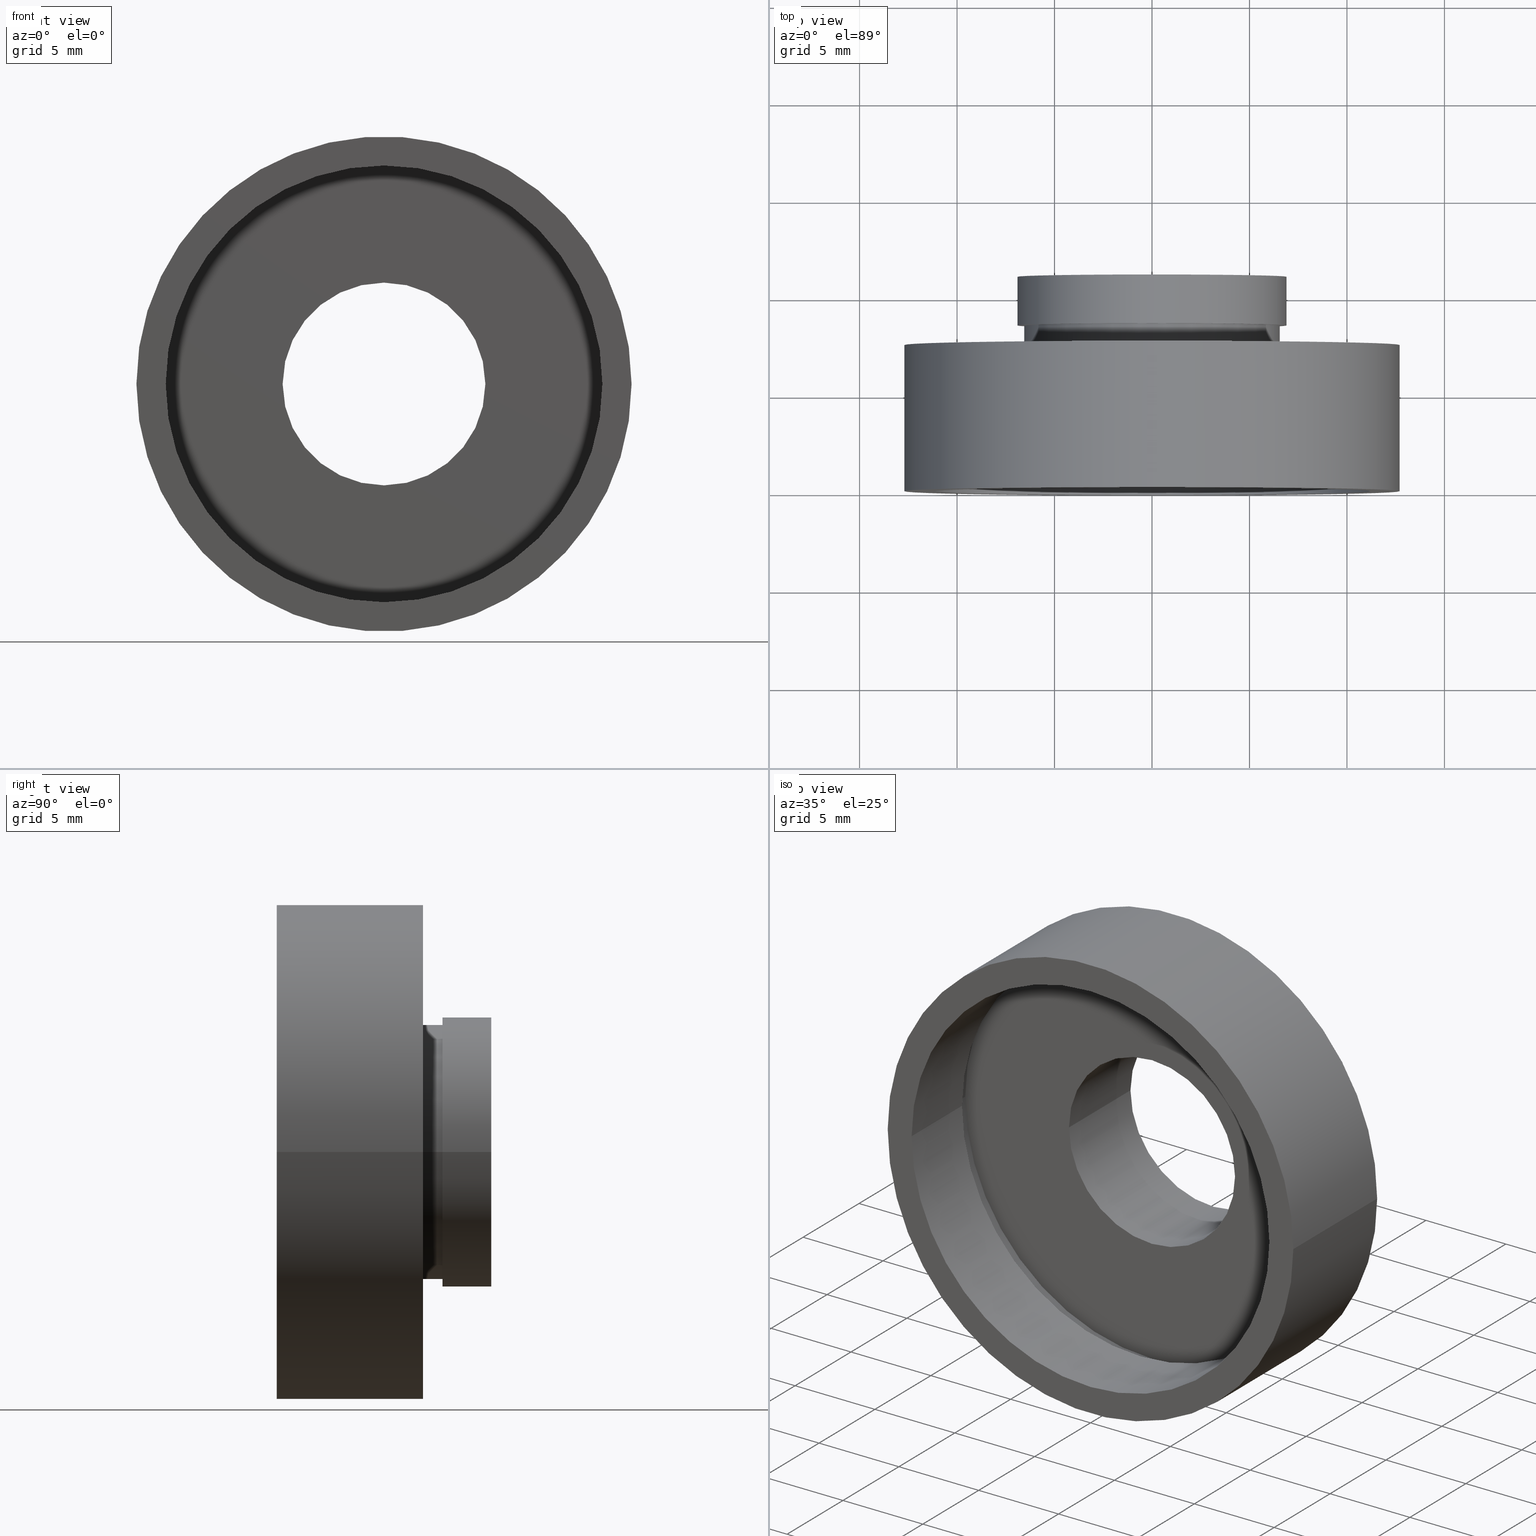
[diagram: canonical four-view strip — front | top / right | iso, engineering-drawing reading convention]
A machine part, canonical four-view strip (front | top / right | iso — engineering-drawing reading convention). The complete STEP part file that produces these views, byte-faithful:
ISO-10303-21;
HEADER;
FILE_DESCRIPTION (( 'STEP AP214' ),
    '1' );
FILE_NAME ('504132.STEP',
    '2019-10-10T02:15:28',
    ( '' ),
    ( '' ),
    'SwSTEP 2.0',
    'SolidWorks 2016',
    '' );
FILE_SCHEMA (( 'AUTOMOTIVE_DESIGN' ));
ENDSEC;

DATA;
#1 = PLANE ( 'NONE',  #461 ) ;
#2 = VERTEX_POINT ( 'NONE', #99 ) ;
#3 = ORIENTED_EDGE ( 'NONE', *, *, #297, .T. ) ;
#4 = DIRECTION ( 'NONE',  ( -1.224646799147351000E-016, 1.000000000000000000, -0.0000000000000000000 ) ) ;
#5 = EDGE_CURVE ( 'NONE', #372, #374, #180, .T. ) ;
#6 =( NAMED_UNIT ( * ) PLANE_ANGLE_UNIT ( ) SI_UNIT ( $, .RADIAN. ) );
#7 = DIRECTION ( 'NONE',  ( -1.224646799147351000E-016, 1.000000000000000000, -0.0000000000000000000 ) ) ;
#8 = AXIS2_PLACEMENT_3D ( 'NONE', #351, #47, #402 ) ;
#9 = DIRECTION ( 'NONE',  ( -1.000000000000000000, 0.0000000000000000000, 0.0000000000000000000 ) ) ;
#10 = EDGE_LOOP ( 'NONE', ( #474, #116, #589, #198 ) ) ;
#11 = EDGE_LOOP ( 'NONE', ( #110, #542, #592, #204 ) ) ;
#12 = DIRECTION ( 'NONE',  ( -1.000000000000000000, -1.482669637587014800E-016, 0.0000000000000000000 ) ) ;
#13 = APPLICATION_PROTOCOL_DEFINITION ( 'draft international standard', 'automotive_design', 1998, #404 ) ;
#14 = DIRECTION ( 'NONE',  ( -1.224646799147351000E-016, 1.000000000000000000, -0.0000000000000000000 ) ) ;
#15 = VECTOR ( 'NONE', #207, 1000.000000000000000 ) ;
#16 = FILL_AREA_STYLE ('',( #185 ) ) ;
#17 = ADVANCED_FACE ( 'NONE', ( #571 ), #482, .F. ) ;
#18 =( GEOMETRIC_REPRESENTATION_CONTEXT ( 3 ) GLOBAL_UNCERTAINTY_ASSIGNED_CONTEXT ( ( #357 ) ) GLOBAL_UNIT_ASSIGNED_CONTEXT ( ( #161, #304, #53 ) ) REPRESENTATION_CONTEXT ( 'NONE', 'WORKASPACE' ) );
#19 = FACE_OUTER_BOUND ( 'NONE', #597, .T. ) ;
#20 = CARTESIAN_POINT ( 'NONE',  ( -5.200000000000000200, 16.88601823708207700, 0.0000000000000000000 ) ) ;
#21 = ADVANCED_FACE ( 'NONE', ( #513 ), #406, .T. ) ;
#22 = DIRECTION ( 'NONE',  ( -1.224646799147351000E-016, 1.000000000000000000, -0.0000000000000000000 ) ) ;
#23 = EDGE_CURVE ( 'NONE', #360, #2, #422, .T. ) ;
#24 =( LENGTH_UNIT ( ) NAMED_UNIT ( * ) SI_UNIT ( .MILLI., .METRE. ) );
#25 = PRODUCT ( '504132', '504132', '', ( #63 ) ) ;
#26 = DIRECTION ( 'NONE',  ( -1.000000000000000000, 0.0000000000000000000, 0.0000000000000000000 ) ) ;
#27 = ORIENTED_EDGE ( 'NONE', *, *, #5, .F. ) ;
#28 = ORIENTED_EDGE ( 'NONE', *, *, #168, .F. ) ;
#29 = DIRECTION ( 'NONE',  ( -1.000000000000000000, -1.482669637587014800E-016, 0.0000000000000000000 ) ) ;
#30 = DIRECTION ( 'NONE',  ( 1.000000000000000000, 1.224646799147351000E-016, 0.0000000000000000000 ) ) ;
#31 = AXIS2_PLACEMENT_3D ( 'NONE', #206, #535, #303 ) ;
#32 = CIRCLE ( 'NONE', #8, 12.69999999999999900 ) ;
#33 = CARTESIAN_POINT ( 'NONE',  ( 0.0000000000000000000, 16.88601823708207700, 0.0000000000000000000 ) ) ;
#34 = UNCERTAINTY_MEASURE_WITH_UNIT (LENGTH_MEASURE( 1.000000000000000100E-005 ), #613, 'distance_accuracy_value', 'NONE');
#35 = ORIENTED_EDGE ( 'NONE', *, *, #509, .F. ) ;
#36 = CARTESIAN_POINT ( 'NONE',  ( 12.70000000000000500, -1.914145517036478500E-015, 1.555301434917138800E-015 ) ) ;
#37 = EDGE_LOOP ( 'NONE', ( #570, #171 ) ) ;
#38 = EDGE_CURVE ( 'NONE', #302, #102, #525, .T. ) ;
#39 =( GEOMETRIC_REPRESENTATION_CONTEXT ( 3 ) GLOBAL_UNCERTAINTY_ASSIGNED_CONTEXT ( ( #456 ) ) GLOBAL_UNIT_ASSIGNED_CONTEXT ( ( #536, #54, #254 ) ) REPRESENTATION_CONTEXT ( 'NONE', 'WORKASPACE' ) );
#40 = ORIENTED_EDGE ( 'NONE', *, *, #230, .F. ) ;
#41 = PRESENTATION_STYLE_ASSIGNMENT (( #617 ) ) ;
#42 = FILL_AREA_STYLE ('',( #100 ) ) ;
#43 = FILL_AREA_STYLE_COLOUR ( '', #466 ) ;
#44 = DIRECTION ( 'NONE',  ( 1.000000000000000000, 1.224646799147351000E-016, 0.0000000000000000000 ) ) ;
#45 = LINE ( 'NONE', #399, #544 ) ;
#46 = DIRECTION ( 'NONE',  ( -1.224646799147351000E-016, 1.000000000000000000, -0.0000000000000000000 ) ) ;
#47 = DIRECTION ( 'NONE',  ( -1.224646799147351000E-016, 1.000000000000000000, -0.0000000000000000000 ) ) ;
#48 = ORIENTED_EDGE ( 'NONE', *, *, #265, .F. ) ;
#49 = CARTESIAN_POINT ( 'NONE',  ( 1.516849758822328300E-015, 4.499999999999997300, 0.0000000000000000000 ) ) ;
#50 = ORIENTED_EDGE ( 'NONE', *, *, #230, .T. ) ;
#51 = DIRECTION ( 'NONE',  ( -1.224646799147351000E-016, 1.000000000000000000, -0.0000000000000000000 ) ) ;
#52 = AXIS2_PLACEMENT_3D ( 'NONE', #286, #411, #329 ) ;
#53 =( NAMED_UNIT ( * ) SI_UNIT ( $, .STERADIAN. ) SOLID_ANGLE_UNIT ( ) );
#54 =( NAMED_UNIT ( * ) PLANE_ANGLE_UNIT ( ) SI_UNIT ( $, .RADIAN. ) );
#55 = UNCERTAINTY_MEASURE_WITH_UNIT (LENGTH_MEASURE( 1.000000000000000100E-005 ), #533, 'distance_accuracy_value', 'NONE');
#56 = VECTOR ( 'NONE', #132, 1000.000000000000000 ) ;
#57 = DIRECTION ( 'NONE',  ( -1.224646799147351000E-016, 1.000000000000000000, -0.0000000000000000000 ) ) ;
#58 = AXIS2_PLACEMENT_3D ( 'NONE', #191, #242, #511 ) ;
#59 = LINE ( 'NONE', #586, #178 ) ;
#60 = FILL_AREA_STYLE_COLOUR ( '', #479 ) ;
#61 = VERTEX_POINT ( 'NONE', #264 ) ;
#62 = DIRECTION ( 'NONE',  ( -1.000000000000000000, -1.324216393875425300E-016, 0.0000000000000000000 ) ) ;
#63 = PRODUCT_CONTEXT ( 'NONE', #615, 'mechanical' ) ;
#64 = DIRECTION ( 'NONE',  ( -1.000000000000000000, 0.0000000000000000000, 0.0000000000000000000 ) ) ;
#65 = CIRCLE ( 'NONE', #283, 5.200000000000001100 ) ;
#66 = DIRECTION ( 'NONE',  ( -1.000000000000000000, 0.0000000000000000000, 0.0000000000000000000 ) ) ;
#67 = LINE ( 'NONE', #548, #434 ) ;
#68 = AXIS2_PLACEMENT_3D ( 'NONE', #49, #431, #208 ) ;
#69 = DIRECTION ( 'NONE',  ( 1.000000000000000000, 1.224646799147351000E-016, 0.0000000000000000000 ) ) ;
#70 = ORIENTED_EDGE ( 'NONE', *, *, #297, .F. ) ;
#71 = SURFACE_STYLE_FILL_AREA ( #214 ) ;
#72 = VERTEX_POINT ( 'NONE', #259 ) ;
#73 = ADVANCED_FACE ( 'NONE', ( #519, #133 ), #309, .F. ) ;
#74 = UNCERTAINTY_MEASURE_WITH_UNIT (LENGTH_MEASURE( 1.000000000000000100E-005 ), #24, 'distance_accuracy_value', 'NONE');
#75 = CARTESIAN_POINT ( 'NONE',  ( 1.394385078907592800E-015, 5.500000000000000000, 0.0000000000000000000 ) ) ;
#76 = ADVANCED_FACE ( 'NONE', ( #590 ), #546, .T. ) ;
#77 = DIRECTION ( 'NONE',  ( -1.224646799147351000E-016, 1.000000000000000000, -0.0000000000000000000 ) ) ;
#78 = STYLED_ITEM ( 'NONE', ( #197 ), #79 ) ;
#79 = ADVANCED_FACE ( 'NONE', ( #19 ), #371, .T. ) ;
#80 = VERTEX_POINT ( 'NONE', #105 ) ;
#81 = CARTESIAN_POINT ( 'NONE',  ( 5.200000000000001100, 5.500000000000000900, 6.368163355566236400E-016 ) ) ;
#82 = AXIS2_PLACEMENT_3D ( 'NONE', #33, #421, #248 ) ;
#83 = SURFACE_STYLE_USAGE ( .BOTH. , #193 ) ;
#84 = PRESENTATION_LAYER_ASSIGNMENT (  '', '', ( #147 ) ) ;
#85 = CYLINDRICAL_SURFACE ( 'NONE', #409, 11.19999999999999900 ) ;
#86 = ADVANCED_FACE ( 'NONE', ( #487 ), #386, .F. ) ;
#87 = DIRECTION ( 'NONE',  ( -1.224646799147351000E-016, 1.000000000000000000, -0.0000000000000000000 ) ) ;
#88 = FACE_OUTER_BOUND ( 'NONE', #618, .T. ) ;
#89 = SURFACE_STYLE_FILL_AREA ( #173 ) ;
#90 =( NAMED_UNIT ( * ) PLANE_ANGLE_UNIT ( ) SI_UNIT ( $, .RADIAN. ) );
#91 = EDGE_CURVE ( 'NONE', #72, #237, #501, .T. ) ;
#92 = ORIENTED_EDGE ( 'NONE', *, *, #240, .T. ) ;
#93 = AXIS2_PLACEMENT_3D ( 'NONE', #566, #530, #158 ) ;
#94 = CARTESIAN_POINT ( 'NONE',  ( 2.067940818438636500E-015, -3.469446951953614200E-015, 0.0000000000000000000 ) ) ;
#95 = VERTEX_POINT ( 'NONE', #107 ) ;
#96 = ORIENTED_EDGE ( 'NONE', *, *, #356, .T. ) ;
#97 = DIRECTION ( 'NONE',  ( -1.000000000000000000, 0.0000000000000000000, 0.0000000000000000000 ) ) ;
#98 = COLOUR_RGB ( '',1.000000000000000000, 1.000000000000000000, 1.000000000000000000 ) ;
#99 = CARTESIAN_POINT ( 'NONE',  ( 5.200000000000001100, 11.00000000000000000, 6.368163355566236400E-016 ) ) ;
#100 = FILL_AREA_STYLE_COLOUR ( '', #585 ) ;
#101 = DIRECTION ( 'NONE',  ( -1.224646799147351000E-016, 1.000000000000000000, 0.0000000000000000000 ) ) ;
#102 = VERTEX_POINT ( 'NONE', #445 ) ;
#103 = VERTEX_POINT ( 'NONE', #365 ) ;
#104 = AXIS2_PLACEMENT_3D ( 'NONE', #215, #306, #152 ) ;
#105 = CARTESIAN_POINT ( 'NONE',  ( -11.69999999999999800, 4.499999999999995600, 0.0000000000000000000 ) ) ;
#106 = CARTESIAN_POINT ( 'NONE',  ( 0.0000000000000000000, 16.88601823708207700, 0.0000000000000000000 ) ) ;
#107 = CARTESIAN_POINT ( 'NONE',  ( -12.69999999999999900, -5.024748386870749500E-015, 0.0000000000000000000 ) ) ;
#108 = DIRECTION ( 'NONE',  ( -1.000000000000000000, -1.224646799147351000E-016, 0.0000000000000000000 ) ) ;
#109 = CARTESIAN_POINT ( 'NONE',  ( 11.70000000000000100, 4.499999999999999100, 1.432836755002403100E-015 ) ) ;
#110 = ORIENTED_EDGE ( 'NONE', *, *, #203, .F. ) ;
#111 = ORIENTED_EDGE ( 'NONE', *, *, #23, .T. ) ;
#112 = MECHANICAL_DESIGN_GEOMETRIC_PRESENTATION_REPRESENTATION (  '', ( #78 ), #18 ) ;
#113 = CARTESIAN_POINT ( 'NONE',  ( 6.549999999999998900, 16.88601823708207700, 8.021436534415162300E-016 ) ) ;
#114 = AXIS2_PLACEMENT_3D ( 'NONE', #94, #249, #429 ) ;
#115 = EDGE_CURVE ( 'NONE', #457, #95, #551, .T. ) ;
#116 = ORIENTED_EDGE ( 'NONE', *, *, #509, .T. ) ;
#117 = SURFACE_STYLE_FILL_AREA ( #527 ) ;
#118 = CARTESIAN_POINT ( 'NONE',  ( -6.900000000000001200, 16.88601823708207700, 0.0000000000000000000 ) ) ;
#119 = ORIENTED_EDGE ( 'NONE', *, *, #381, .T. ) ;
#120 = EDGE_CURVE ( 'NONE', #61, #360, #493, .T. ) ;
#121 = CYLINDRICAL_SURFACE ( 'NONE', #82, 11.69999999999999900 ) ;
#122 = PRESENTATION_LAYER_ASSIGNMENT (  '', '', ( #192 ) ) ;
#123 = SURFACE_STYLE_USAGE ( .BOTH. , #506 ) ;
#124 = VERTEX_POINT ( 'NONE', #322 ) ;
#125 = EDGE_LOOP ( 'NONE', ( #350, #526 ) ) ;
#126 = AXIS2_PLACEMENT_3D ( 'NONE', #555, #295, #30 ) ;
#127 = EDGE_CURVE ( 'NONE', #231, #80, #603, .T. ) ;
#128 = CARTESIAN_POINT ( 'NONE',  ( 12.70000000000000100, 7.499999999999998200, 1.555301434917138400E-015 ) ) ;
#129 = CARTESIAN_POINT ( 'NONE',  ( -6.549999999999998000, 8.500000000000000000, 0.0000000000000000000 ) ) ;
#130 = VECTOR ( 'NONE', #315, 1000.000000000000000 ) ;
#131 = ORIENTED_EDGE ( 'NONE', *, *, #609, .T. ) ;
#132 = DIRECTION ( 'NONE',  ( -1.224646799147351000E-016, 1.000000000000000000, -0.0000000000000000000 ) ) ;
#133 = FACE_BOUND ( 'NONE', #504, .T. ) ;
#134 = AXIS2_PLACEMENT_3D ( 'NONE', #581, #333, #395 ) ;
#135 = FILL_AREA_STYLE_COLOUR ( '', #470 ) ;
#136 = EDGE_CURVE ( 'NONE', #427, #163, #218, .T. ) ;
#137 = FACE_BOUND ( 'NONE', #430, .T. ) ;
#138 = DIRECTION ( 'NONE',  ( -1.000000000000000000, 0.0000000000000000000, 0.0000000000000000000 ) ) ;
#139 = VECTOR ( 'NONE', #534, 1000.000000000000000 ) ;
#140 = PRODUCT_DEFINITION_SHAPE ( 'NONE', 'NONE',  #175 ) ;
#141 = FACE_OUTER_BOUND ( 'NONE', #612, .T. ) ;
#142 = AXIS2_PLACEMENT_3D ( 'NONE', #500, #284, #234 ) ;
#143 = DIRECTION ( 'NONE',  ( -1.000000000000000000, 0.0000000000000000000, 0.0000000000000000000 ) ) ;
#144 = VERTEX_POINT ( 'NONE', #166 ) ;
#145 = ORIENTED_EDGE ( 'NONE', *, *, #381, .F. ) ;
#146 = CARTESIAN_POINT ( 'NONE',  ( -11.19999999999999800, -1.371604415045033100E-015, 0.0000000000000000000 ) ) ;
#147 = STYLED_ITEM ( 'NONE', ( #41 ), #76 ) ;
#148 = CARTESIAN_POINT ( 'NONE',  ( 0.0000000000000000000, 16.88601823708207700, 0.0000000000000000000 ) ) ;
#149 = MECHANICAL_DESIGN_GEOMETRIC_PRESENTATION_REPRESENTATION (  '', ( #313 ), #494 ) ;
#150 = STYLED_ITEM ( 'NONE', ( #364 ), #184 ) ;
#151 = ORIENTED_EDGE ( 'NONE', *, *, #203, .T. ) ;
#152 = DIRECTION ( 'NONE',  ( -1.000000000000000000, -1.224646799147351000E-016, 0.0000000000000000000 ) ) ;
#153 = ORIENTED_EDGE ( 'NONE', *, *, #557, .F. ) ;
#154 =( LENGTH_UNIT ( ) NAMED_UNIT ( * ) SI_UNIT ( .MILLI., .METRE. ) );
#155 = DIRECTION ( 'NONE',  ( -1.224646799147351000E-016, 1.000000000000000000, -0.0000000000000000000 ) ) ;
#156 = CARTESIAN_POINT ( 'NONE',  ( 1.026991039163387500E-015, 8.500000000000000000, 0.0000000000000000000 ) ) ;
#157 = CIRCLE ( 'NONE', #134, 11.19999999999999900 ) ;
#158 = DIRECTION ( 'NONE',  ( -1.000000000000000000, -1.365923996832131600E-016, 0.0000000000000000000 ) ) ;
#159 = CARTESIAN_POINT ( 'NONE',  ( 6.550000000000000700, 7.499999999999999100, 0.0000000000000000000 ) ) ;
#160 = CIRCLE ( 'NONE', #233, 5.200000000000000200 ) ;
#161 =( LENGTH_UNIT ( ) NAMED_UNIT ( * ) SI_UNIT ( .MILLI., .METRE. ) );
#162 = CARTESIAN_POINT ( 'NONE',  ( 7.208293393765501500E-016, 10.99999999999999600, 0.0000000000000000000 ) ) ;
#163 = VERTEX_POINT ( 'NONE', #319 ) ;
#164 = AXIS2_PLACEMENT_3D ( 'NONE', #280, #77, #66 ) ;
#165 = PLANE ( 'NONE',  #564 ) ;
#166 = CARTESIAN_POINT ( 'NONE',  ( -6.549999999999998900, 7.499999999999999100, 0.0000000000000000000 ) ) ;
#167 = AXIS2_PLACEMENT_3D ( 'NONE', #199, #472, #143 ) ;
#168 = EDGE_CURVE ( 'NONE', #312, #103, #288, .T. ) ;
#169 = FACE_BOUND ( 'NONE', #252, .T. ) ;
#170 = DIRECTION ( 'NONE',  ( -1.000000000000000000, -1.224646799147350700E-016, 0.0000000000000000000 ) ) ;
#171 = ORIENTED_EDGE ( 'NONE', *, *, #177, .F. ) ;
#172 = ORIENTED_EDGE ( 'NONE', *, *, #327, .T. ) ;
#173 = FILL_AREA_STYLE ('',( #60 ) ) ;
#174 = CARTESIAN_POINT ( 'NONE',  ( 1.394385078907593200E-015, 5.499999999999996400, 0.0000000000000000000 ) ) ;
#175 = PRODUCT_DEFINITION ( 'δ֪', '', #245, #593 ) ;
#176 = FACE_BOUND ( 'NONE', #394, .T. ) ;
#177 = EDGE_CURVE ( 'NONE', #72, #144, #471, .T. ) ;
#178 = VECTOR ( 'NONE', #57, 1000.000000000000000 ) ;
#179 = ORIENTED_EDGE ( 'NONE', *, *, #463, .T. ) ;
#180 = CIRCLE ( 'NONE', #93, 12.69999999999999900 ) ;
#181 = STYLED_ITEM ( 'NONE', ( #217 ), #370 ) ;
#182 = DIRECTION ( 'NONE',  ( -1.224646799147351000E-016, 1.000000000000000000, -0.0000000000000000000 ) ) ;
#183 = ORIENTED_EDGE ( 'NONE', *, *, #136, .T. ) ;
#184 = ADVANCED_FACE ( 'NONE', ( #510 ), #348, .F. ) ;
#185 = FILL_AREA_STYLE_COLOUR ( '', #339 ) ;
#186 = AXIS2_PLACEMENT_3D ( 'NONE', #447, #4, #62 ) ;
#187 = CIRCLE ( 'NONE', #52, 11.69999999999999900 ) ;
#188 = EDGE_LOOP ( 'NONE', ( #572, #111, #359, #387 ) ) ;
#189 = SURFACE_STYLE_FILL_AREA ( #389 ) ;
#190 = AXIS2_PLACEMENT_3D ( 'NONE', #156, #435, #349 ) ;
#191 = CARTESIAN_POINT ( 'NONE',  ( 2.067940818438636100E-015, 0.0000000000000000000, 0.0000000000000000000 ) ) ;
#192 = STYLED_ITEM ( 'NONE', ( #563 ), #17 ) ;
#193 = SURFACE_SIDE_STYLE ('',( #377 ) ) ;
#194 =( NAMED_UNIT ( * ) SI_UNIT ( $, .STERADIAN. ) SOLID_ANGLE_UNIT ( ) );
#195 = CIRCLE ( 'NONE', #587, 11.69999999999999900 ) ;
#196 = DIRECTION ( 'NONE',  ( -1.000000000000000000, 0.0000000000000000000, 0.0000000000000000000 ) ) ;
#197 = PRESENTATION_STYLE_ASSIGNMENT (( #484 ) ) ;
#198 = ORIENTED_EDGE ( 'NONE', *, *, #609, .F. ) ;
#199 = CARTESIAN_POINT ( 'NONE',  ( 0.0000000000000000000, 16.88601823708207700, 0.0000000000000000000 ) ) ;
#200 = PRESENTATION_LAYER_ASSIGNMENT (  '', '', ( #78 ) ) ;
#201 = AXIS2_PLACEMENT_3D ( 'NONE', #260, #51, #263 ) ;
#202 = CIRCLE ( 'NONE', #164, 6.900000000000000400 ) ;
#203 = EDGE_CURVE ( 'NONE', #103, #451, #227, .T. ) ;
#204 = ORIENTED_EDGE ( 'NONE', *, *, #620, .F. ) ;
#205 = CARTESIAN_POINT ( 'NONE',  ( 0.0000000000000000000, 16.88601823708207700, 0.0000000000000000000 ) ) ;
#206 = CARTESIAN_POINT ( 'NONE',  ( 0.0000000000000000000, 16.88601823708207700, 0.0000000000000000000 ) ) ;
#207 = DIRECTION ( 'NONE',  ( -1.224646799147351000E-016, 1.000000000000000000, -0.0000000000000000000 ) ) ;
#208 = DIRECTION ( 'NONE',  ( -1.000000000000000000, -1.548860246407863600E-016, 0.0000000000000000000 ) ) ;
#209 = SURFACE_STYLE_FILL_AREA ( #16 ) ;
#210 = PRESENTATION_LAYER_ASSIGNMENT (  '', '', ( #181 ) ) ;
#211 = MECHANICAL_DESIGN_GEOMETRIC_PRESENTATION_REPRESENTATION (  '', ( #192 ), #529 ) ;
#212 = ORIENTED_EDGE ( 'NONE', *, *, #294, .T. ) ;
#213 = VECTOR ( 'NONE', #397, 1000.000000000000000 ) ;
#214 = FILL_AREA_STYLE ('',( #576 ) ) ;
#215 = CARTESIAN_POINT ( 'NONE',  ( 12.70000000000000300, -1.061774417353046300E-015, 0.0000000000000000000 ) ) ;
#216 = MECHANICAL_DESIGN_GEOMETRIC_PRESENTATION_REPRESENTATION (  '', ( #290 ), #320 ) ;
#217 = PRESENTATION_STYLE_ASSIGNMENT (( #554 ) ) ;
#218 = CIRCLE ( 'NONE', #222, 11.69999999999999900 ) ;
#219 = DIRECTION ( 'NONE',  ( -1.224646799147351000E-016, 1.000000000000000000, -0.0000000000000000000 ) ) ;
#220 = UNCERTAINTY_MEASURE_WITH_UNIT (LENGTH_MEASURE( 1.000000000000000100E-005 ), #338, 'distance_accuracy_value', 'NONE');
#221 = ORIENTED_EDGE ( 'NONE', *, *, #277, .T. ) ;
#222 = AXIS2_PLACEMENT_3D ( 'NONE', #272, #219, #12 ) ;
#223 = CARTESIAN_POINT ( 'NONE',  ( 2.067940818438636500E-015, -3.469446951953614200E-015, 0.0000000000000000000 ) ) ;
#224 = AXIS2_PLACEMENT_3D ( 'NONE', #380, #87, #138 ) ;
#225 = PRESENTATION_LAYER_ASSIGNMENT (  '', '', ( #425 ) ) ;
#226 = DIRECTION ( 'NONE',  ( -1.000000000000000000, -1.482669637587014800E-016, 0.0000000000000000000 ) ) ;
#227 = LINE ( 'NONE', #579, #130 ) ;
#228 = PRESENTATION_STYLE_ASSIGNMENT (( #432 ) ) ;
#229 = ORIENTED_EDGE ( 'NONE', *, *, #120, .T. ) ;
#230 = EDGE_CURVE ( 'NONE', #231, #163, #59, .T. ) ;
#231 = VERTEX_POINT ( 'NONE', #109 ) ;
#232 = ADVANCED_FACE ( 'NONE', ( #169, #325 ), #314, .F. ) ;
#233 = AXIS2_PLACEMENT_3D ( 'NONE', #75, #182, #498 ) ;
#234 = DIRECTION ( 'NONE',  ( -1.000000000000000000, -1.324216393875425300E-016, 0.0000000000000000000 ) ) ;
#235 = PRESENTATION_STYLE_ASSIGNMENT (( #123 ) ) ;
#236 = PRESENTATION_LAYER_ASSIGNMENT (  '', '', ( #313 ) ) ;
#237 = VERTEX_POINT ( 'NONE', #403 ) ;
#238 = CARTESIAN_POINT ( 'NONE',  ( -5.200000000000000200, 11.00000000000000000, 0.0000000000000000000 ) ) ;
#239 = ORIENTED_EDGE ( 'NONE', *, *, #606, .F. ) ;
#240 = EDGE_CURVE ( 'NONE', #80, #427, #67, .T. ) ;
#241 = FILL_AREA_STYLE ('',( #508 ) ) ;
#242 = DIRECTION ( 'NONE',  ( -1.224646799147351000E-016, 1.000000000000000000, -0.0000000000000000000 ) ) ;
#243 = EDGE_LOOP ( 'NONE', ( #436, #70 ) ) ;
#244 = ORIENTED_EDGE ( 'NONE', *, *, #505, .T. ) ;
#245 = PRODUCT_DEFINITION_FORMATION_WITH_SPECIFIED_SOURCE ( '�κ�', '', #25, .NOT_KNOWN. ) ;
#246 = FILL_AREA_STYLE ('',( #135 ) ) ;
#247 = AXIS2_PLACEMENT_3D ( 'NONE', #223, #584, #170 ) ;
#248 = DIRECTION ( 'NONE',  ( -1.000000000000000000, 0.0000000000000000000, 0.0000000000000000000 ) ) ;
#249 = DIRECTION ( 'NONE',  ( -1.224646799147351000E-016, 1.000000000000000000, -0.0000000000000000000 ) ) ;
#250 = MANIFOLD_SOLID_BREP ( '��ת1', #408 ) ;
#251 = ORIENTED_EDGE ( 'NONE', *, *, #261, .T. ) ;
#252 = EDGE_LOOP ( 'NONE', ( #268, #239 ) ) ;
#253 = SURFACE_STYLE_USAGE ( .BOTH. , #256 ) ;
#254 =( NAMED_UNIT ( * ) SI_UNIT ( $, .STERADIAN. ) SOLID_ANGLE_UNIT ( ) );
#255 = AXIS2_PLACEMENT_3D ( 'NONE', #162, #441, #486 ) ;
#256 = SURFACE_SIDE_STYLE ('',( #189 ) ) ;
#257 = CARTESIAN_POINT ( 'NONE',  ( 0.0000000000000000000, 0.0000000000000000000, 0.0000000000000000000 ) ) ;
#258 = VERTEX_POINT ( 'NONE', #238 ) ;
#259 = CARTESIAN_POINT ( 'NONE',  ( 6.550000000000000700, 7.500000000000000900, 8.021436534415164200E-016 ) ) ;
#260 = CARTESIAN_POINT ( 'NONE',  ( 2.067940818438636100E-015, 0.0000000000000000000, 0.0000000000000000000 ) ) ;
#261 = EDGE_CURVE ( 'NONE', #80, #231, #187, .T. ) ;
#262 = DIRECTION ( 'NONE',  ( -1.224646799147351000E-016, 1.000000000000000000, -0.0000000000000000000 ) ) ;
#263 = DIRECTION ( 'NONE',  ( -1.000000000000000000, -1.224646799147351000E-016, 0.0000000000000000000 ) ) ;
#264 = CARTESIAN_POINT ( 'NONE',  ( -5.199999999999998400, 5.499999999999999100, 0.0000000000000000000 ) ) ;
#265 = EDGE_CURVE ( 'NONE', #103, #312, #202, .T. ) ;
#266 = CARTESIAN_POINT ( 'NONE',  ( 1.394385078907592800E-015, 5.500000000000000000, 0.0000000000000000000 ) ) ;
#267 = VERTEX_POINT ( 'NONE', #594 ) ;
#268 = ORIENTED_EDGE ( 'NONE', *, *, #410, .F. ) ;
#269 = EDGE_CURVE ( 'NONE', #61, #258, #301, .T. ) ;
#270 = CIRCLE ( 'NONE', #332, 6.549999999999998900 ) ;
#271 =( NAMED_UNIT ( * ) SI_UNIT ( $, .STERADIAN. ) SOLID_ANGLE_UNIT ( ) );
#272 = CARTESIAN_POINT ( 'NONE',  ( 1.394385078907593200E-015, 5.499999999999996400, 0.0000000000000000000 ) ) ;
#273 = ORIENTED_EDGE ( 'NONE', *, *, #38, .F. ) ;
#274 = ORIENTED_EDGE ( 'NONE', *, *, #240, .F. ) ;
#275 = PLANE ( 'NONE',  #600 ) ;
#276 = PRODUCT_RELATED_PRODUCT_CATEGORY ( 'part', '', ( #25 ) ) ;
#277 = EDGE_CURVE ( 'NONE', #360, #61, #160, .T. ) ;
#278 = ADVANCED_BREP_SHAPE_REPRESENTATION ( '504132', ( #250, #428 ), #39 ) ;
#279 = FACE_OUTER_BOUND ( 'NONE', #562, .T. ) ;
#280 = CARTESIAN_POINT ( 'NONE',  ( 1.026991039163387500E-015, 8.500000000000000000, 0.0000000000000000000 ) ) ;
#281 = FACE_BOUND ( 'NONE', #514, .T. ) ;
#282 = ADVANCED_FACE ( 'NONE', ( #517 ), #298, .T. ) ;
#283 = AXIS2_PLACEMENT_3D ( 'NONE', #574, #355, #623 ) ;
#284 = DIRECTION ( 'NONE',  ( -1.224646799147351000E-016, 1.000000000000000000, -0.0000000000000000000 ) ) ;
#285 = ORIENTED_EDGE ( 'NONE', *, *, #38, .T. ) ;
#286 = CARTESIAN_POINT ( 'NONE',  ( 1.516849758822328300E-015, 4.499999999999997300, 0.0000000000000000000 ) ) ;
#287 = ADVANCED_FACE ( 'NONE', ( #398, #281 ), #275, .F. ) ;
#288 = CIRCLE ( 'NONE', #415, 6.900000000000000400 ) ;
#289 = ADVANCED_FACE ( 'NONE', ( #141 ), #413, .T. ) ;
#290 = STYLED_ITEM ( 'NONE', ( #353 ), #378 ) ;
#291 = ORIENTED_EDGE ( 'NONE', *, *, #477, .F. ) ;
#292 =( NAMED_UNIT ( * ) SI_UNIT ( $, .STERADIAN. ) SOLID_ANGLE_UNIT ( ) );
#293 = COLOUR_RGB ( '',1.000000000000000000, 1.000000000000000000, 1.000000000000000000 ) ;
#294 = EDGE_CURVE ( 'NONE', #144, #72, #419, .T. ) ;
#295 = DIRECTION ( 'NONE',  ( 1.224646799147351000E-016, -1.000000000000000000, 0.0000000000000000000 ) ) ;
#296 = DIRECTION ( 'NONE',  ( -1.224646799147351000E-016, 1.000000000000000000, -0.0000000000000000000 ) ) ;
#297 = EDGE_CURVE ( 'NONE', #163, #427, #195, .T. ) ;
#298 = CYLINDRICAL_SURFACE ( 'NONE', #599, 6.549999999999998900 ) ;
#299 = CARTESIAN_POINT ( 'NONE',  ( 1.026991039163387500E-015, 8.500000000000000000, 0.0000000000000000000 ) ) ;
#300 = AXIS2_PLACEMENT_3D ( 'NONE', #266, #7, #439 ) ;
#301 = LINE ( 'NONE', #20, #614 ) ;
#302 = VERTEX_POINT ( 'NONE', #550 ) ;
#303 = DIRECTION ( 'NONE',  ( -1.000000000000000000, 0.0000000000000000000, 0.0000000000000000000 ) ) ;
#304 =( NAMED_UNIT ( * ) PLANE_ANGLE_UNIT ( ) SI_UNIT ( $, .RADIAN. ) );
#305 = CIRCLE ( 'NONE', #190, 6.549999999999998900 ) ;
#306 = DIRECTION ( 'NONE',  ( -1.224646799147351000E-016, 1.000000000000000000, 0.0000000000000000000 ) ) ;
#307 = DIRECTION ( 'NONE',  ( 1.224646799147351000E-016, -1.000000000000000000, 0.0000000000000000000 ) ) ;
#308 = PRESENTATION_LAYER_ASSIGNMENT (  '', '', ( #150 ) ) ;
#309 = PLANE ( 'NONE',  #104 ) ;
#310 = CARTESIAN_POINT ( 'NONE',  ( 6.900000000000001200, 8.500000000000000000, 0.0000000000000000000 ) ) ;
#311 = ORIENTED_EDGE ( 'NONE', *, *, #120, .F. ) ;
#312 = VERTEX_POINT ( 'NONE', #416 ) ;
#313 = STYLED_ITEM ( 'NONE', ( #228 ), #278 ) ;
#314 = PLANE ( 'NONE',  #473 ) ;
#315 = DIRECTION ( 'NONE',  ( -1.224646799147351000E-016, 1.000000000000000000, -0.0000000000000000000 ) ) ;
#316 = EDGE_LOOP ( 'NONE', ( #251, #444 ) ) ;
#317 = COLOUR_RGB ( '',1.000000000000000000, 1.000000000000000000, 1.000000000000000000 ) ;
#318 = DIRECTION ( 'NONE',  ( 1.000000000000000000, 0.0000000000000000000, 0.0000000000000000000 ) ) ;
#319 = CARTESIAN_POINT ( 'NONE',  ( 11.70000000000000100, 5.499999999999998200, 1.432836755002403100E-015 ) ) ;
#320 =( GEOMETRIC_REPRESENTATION_CONTEXT ( 3 ) GLOBAL_UNCERTAINTY_ASSIGNED_CONTEXT ( ( #324 ) ) GLOBAL_UNIT_ASSIGNED_CONTEXT ( ( #465, #601, #194 ) ) REPRESENTATION_CONTEXT ( 'NONE', 'WORKASPACE' ) );
#321 = EDGE_CURVE ( 'NONE', #312, #267, #531, .T. ) ;
#322 = CARTESIAN_POINT ( 'NONE',  ( 11.20000000000000100, 1.371604415045033100E-015, 1.371604415045035500E-015 ) ) ;
#323 = CYLINDRICAL_SURFACE ( 'NONE', #167, 12.69999999999999900 ) ;
#324 = UNCERTAINTY_MEASURE_WITH_UNIT (LENGTH_MEASURE( 1.000000000000000100E-005 ), #465, 'distance_accuracy_value', 'NONE');
#325 = FACE_OUTER_BOUND ( 'NONE', #488, .T. ) ;
#326 = DIRECTION ( 'NONE',  ( -1.224646799147351000E-016, 1.000000000000000000, 0.0000000000000000000 ) ) ;
#327 = EDGE_CURVE ( 'NONE', #475, #124, #454, .T. ) ;
#328 = DIRECTION ( 'NONE',  ( -1.000000000000000000, 0.0000000000000000000, 0.0000000000000000000 ) ) ;
#329 = DIRECTION ( 'NONE',  ( -1.000000000000000000, -1.482669637587014800E-016, 0.0000000000000000000 ) ) ;
#330 = CYLINDRICAL_SURFACE ( 'NONE', #224, 5.200000000000000200 ) ;
#331 = MECHANICAL_DESIGN_GEOMETRIC_PRESENTATION_REPRESENTATION (  '', ( #147 ), #346 ) ;
#332 = AXIS2_PLACEMENT_3D ( 'NONE', #299, #336, #605 ) ;
#333 = DIRECTION ( 'NONE',  ( -1.224646799147351000E-016, 1.000000000000000000, -0.0000000000000000000 ) ) ;
#334 = ORIENTED_EDGE ( 'NONE', *, *, #557, .T. ) ;
#335 = CARTESIAN_POINT ( 'NONE',  ( 0.0000000000000000000, 16.88601823708207700, 0.0000000000000000000 ) ) ;
#336 = DIRECTION ( 'NONE',  ( -1.224646799147351000E-016, 1.000000000000000000, -0.0000000000000000000 ) ) ;
#337 = LINE ( 'NONE', #528, #15 ) ;
#338 =( LENGTH_UNIT ( ) NAMED_UNIT ( * ) SI_UNIT ( .MILLI., .METRE. ) );
#339 = COLOUR_RGB ( '',1.000000000000000000, 1.000000000000000000, 1.000000000000000000 ) ;
#340 = EDGE_LOOP ( 'NONE', ( #481, #311, #383, #405 ) ) ;
#341 = ORIENTED_EDGE ( 'NONE', *, *, #168, .T. ) ;
#342 = CARTESIAN_POINT ( 'NONE',  ( 7.208293393765498600E-016, 11.00000000000000000, 0.0000000000000000000 ) ) ;
#343 = ORIENTED_EDGE ( 'NONE', *, *, #115, .T. ) ;
#344 = UNCERTAINTY_MEASURE_WITH_UNIT (LENGTH_MEASURE( 1.000000000000000100E-005 ), #154, 'distance_accuracy_value', 'NONE');
#345 = APPLICATION_PROTOCOL_DEFINITION ( 'draft international standard', 'automotive_design', 1998, #615 ) ;
#346 =( GEOMETRIC_REPRESENTATION_CONTEXT ( 3 ) GLOBAL_UNCERTAINTY_ASSIGNED_CONTEXT ( ( #55 ) ) GLOBAL_UNIT_ASSIGNED_CONTEXT ( ( #533, #569, #622 ) ) REPRESENTATION_CONTEXT ( 'NONE', 'WORKASPACE' ) );
#347 = SURFACE_SIDE_STYLE ('',( #71 ) ) ;
#348 = CYLINDRICAL_SURFACE ( 'NONE', #368, 5.200000000000000200 ) ;
#349 = DIRECTION ( 'NONE',  ( -1.000000000000000000, 0.0000000000000000000, 0.0000000000000000000 ) ) ;
#350 = ORIENTED_EDGE ( 'NONE', *, *, #565, .T. ) ;
#351 = CARTESIAN_POINT ( 'NONE',  ( 1.149455719078123100E-015, 7.499999999999996400, 0.0000000000000000000 ) ) ;
#352 = EDGE_CURVE ( 'NONE', #426, #237, #270, .T. ) ;
#353 = PRESENTATION_STYLE_ASSIGNMENT (( #83 ) ) ;
#354 = CARTESIAN_POINT ( 'NONE',  ( 0.0000000000000000000, 16.88601823708207700, 0.0000000000000000000 ) ) ;
#355 = DIRECTION ( 'NONE',  ( -1.224646799147351000E-016, 1.000000000000000000, -0.0000000000000000000 ) ) ;
#356 = EDGE_CURVE ( 'NONE', #144, #426, #595, .T. ) ;
#357 = UNCERTAINTY_MEASURE_WITH_UNIT (LENGTH_MEASURE( 1.000000000000000100E-005 ), #161, 'distance_accuracy_value', 'NONE');
#358 = CARTESIAN_POINT ( 'NONE',  ( 0.0000000000000000000, 16.88601823708207700, 0.0000000000000000000 ) ) ;
#359 = ORIENTED_EDGE ( 'NONE', *, *, #606, .T. ) ;
#360 = VERTEX_POINT ( 'NONE', #81 ) ;
#361 = CARTESIAN_POINT ( 'NONE',  ( 5.200000000000001100, 11.00000000000000000, 0.0000000000000000000 ) ) ;
#362 = DIRECTION ( 'NONE',  ( -1.224646799147351000E-016, 1.000000000000000000, -0.0000000000000000000 ) ) ;
#363 = CIRCLE ( 'NONE', #201, 11.19999999999999900 ) ;
#364 = PRESENTATION_STYLE_ASSIGNMENT (( #577 ) ) ;
#365 = CARTESIAN_POINT ( 'NONE',  ( 6.900000000000001200, 8.500000000000000000, 8.450062914116738600E-016 ) ) ;
#366 = ORIENTED_EDGE ( 'NONE', *, *, #327, .F. ) ;
#367 = ORIENTED_EDGE ( 'NONE', *, *, #463, .F. ) ;
#368 = AXIS2_PLACEMENT_3D ( 'NONE', #358, #539, #64 ) ;
#369 = CARTESIAN_POINT ( 'NONE',  ( 0.0000000000000000000, 16.88601823708207700, 0.0000000000000000000 ) ) ;
#370 = ADVANCED_FACE ( 'NONE', ( #607 ), #330, .F. ) ;
#371 = CYLINDRICAL_SURFACE ( 'NONE', #390, 6.900000000000001200 ) ;
#372 = VERTEX_POINT ( 'NONE', #128 ) ;
#373 = DIRECTION ( 'NONE',  ( -1.224646799147351000E-016, 1.000000000000000000, -0.0000000000000000000 ) ) ;
#374 = VERTEX_POINT ( 'NONE', #423 ) ;
#375 = ADVANCED_FACE ( 'NONE', ( #137, #538 ), #515, .F. ) ;
#376 = DIRECTION ( 'NONE',  ( -1.224646799147351000E-016, 1.000000000000000000, -0.0000000000000000000 ) ) ;
#377 = SURFACE_STYLE_FILL_AREA ( #246 ) ;
#378 = ADVANCED_FACE ( 'NONE', ( #492 ), #85, .F. ) ;
#379 = CARTESIAN_POINT ( 'NONE',  ( -6.549999999999998900, 16.88601823708207700, 0.0000000000000000000 ) ) ;
#380 = CARTESIAN_POINT ( 'NONE',  ( 0.0000000000000000000, 16.88601823708207700, 0.0000000000000000000 ) ) ;
#381 = EDGE_CURVE ( 'NONE', #267, #451, #567, .T. ) ;
#382 = EDGE_LOOP ( 'NONE', ( #40, #502, #92, #183 ) ) ;
#383 = ORIENTED_EDGE ( 'NONE', *, *, #269, .T. ) ;
#384 = CARTESIAN_POINT ( 'NONE',  ( 6.900000000000002100, 10.99999999999999600, 8.450062914116738600E-016 ) ) ;
#385 = CARTESIAN_POINT ( 'NONE',  ( 11.19999999999999900, 16.88601823708207700, 1.371604415045035500E-015 ) ) ;
#386 = CYLINDRICAL_SURFACE ( 'NONE', #396, 11.69999999999999900 ) ;
#387 = ORIENTED_EDGE ( 'NONE', *, *, #269, .F. ) ;
#388 = ORIENTED_EDGE ( 'NONE', *, *, #485, .T. ) ;
#389 = FILL_AREA_STYLE ('',( #469 ) ) ;
#390 = AXIS2_PLACEMENT_3D ( 'NONE', #106, #155, #97 ) ;
#391 = DIRECTION ( 'NONE',  ( -1.224646799147351000E-016, 1.000000000000000000, -0.0000000000000000000 ) ) ;
#392 = SURFACE_SIDE_STYLE ('',( #462 ) ) ;
#393 = EDGE_LOOP ( 'NONE', ( #153, #179, #388, #520 ) ) ;
#394 = EDGE_LOOP ( 'NONE', ( #604, #244 ) ) ;
#395 = DIRECTION ( 'NONE',  ( -1.000000000000000000, -1.548860246407863600E-016, 0.0000000000000000000 ) ) ;
#396 = AXIS2_PLACEMENT_3D ( 'NONE', #205, #391, #407 ) ;
#397 = DIRECTION ( 'NONE',  ( -1.224646799147351000E-016, 1.000000000000000000, -0.0000000000000000000 ) ) ;
#398 = FACE_OUTER_BOUND ( 'NONE', #243, .T. ) ;
#399 = CARTESIAN_POINT ( 'NONE',  ( -12.69999999999999900, 16.88601823708207700, 0.0000000000000000000 ) ) ;
#400 = AXIS2_PLACEMENT_3D ( 'NONE', #468, #608, #196 ) ;
#401 = ORIENTED_EDGE ( 'NONE', *, *, #115, .F. ) ;
#402 = DIRECTION ( 'NONE',  ( -1.000000000000000000, -1.365923996832131600E-016, 0.0000000000000000000 ) ) ;
#403 = CARTESIAN_POINT ( 'NONE',  ( 6.549999999999999800, 8.500000000000000000, 8.021436534415162300E-016 ) ) ;
#404 = APPLICATION_CONTEXT ( 'automotive_design' ) ;
#405 = ORIENTED_EDGE ( 'NONE', *, *, #410, .T. ) ;
#406 = CYLINDRICAL_SURFACE ( 'NONE', #588, 12.69999999999999900 ) ;
#407 = DIRECTION ( 'NONE',  ( -1.000000000000000000, 0.0000000000000000000, 0.0000000000000000000 ) ) ;
#408 = CLOSED_SHELL ( 'NONE', ( #21, #289, #79, #370, #453, #378, #73, #17, #375, #86, #287, #184, #232, #76, #499, #282, #549, #458 ) ) ;
#409 = AXIS2_PLACEMENT_3D ( 'NONE', #335, #296, #460 ) ;
#410 = EDGE_CURVE ( 'NONE', #258, #2, #446, .T. ) ;
#411 = DIRECTION ( 'NONE',  ( -1.224646799147351000E-016, 1.000000000000000000, -0.0000000000000000000 ) ) ;
#412 =( NAMED_UNIT ( * ) PLANE_ANGLE_UNIT ( ) SI_UNIT ( $, .RADIAN. ) );
#413 = CYLINDRICAL_SURFACE ( 'NONE', #476, 6.549999999999998900 ) ;
#414 = DIRECTION ( 'NONE',  ( -1.224646799147351000E-016, 1.000000000000000000, -0.0000000000000000000 ) ) ;
#415 = AXIS2_PLACEMENT_3D ( 'NONE', #443, #362, #9 ) ;
#416 = CARTESIAN_POINT ( 'NONE',  ( -6.899999999999999500, 8.500000000000000000, 0.0000000000000000000 ) ) ;
#417 = SHAPE_DEFINITION_REPRESENTATION ( #140, #278 ) ;
#418 = MECHANICAL_DESIGN_GEOMETRIC_PRESENTATION_REPRESENTATION (  '', ( #181 ), #578 ) ;
#419 = CIRCLE ( 'NONE', #142, 6.549999999999999800 ) ;
#420 = EDGE_LOOP ( 'NONE', ( #495, #512, #96, #580 ) ) ;
#421 = DIRECTION ( 'NONE',  ( -1.224646799147351000E-016, 1.000000000000000000, -0.0000000000000000000 ) ) ;
#422 = LINE ( 'NONE', #624, #213 ) ;
#423 = CARTESIAN_POINT ( 'NONE',  ( -12.69999999999999800, 7.499999999999994700, 0.0000000000000000000 ) ) ;
#424 = LINE ( 'NONE', #619, #139 ) ;
#425 = STYLED_ITEM ( 'NONE', ( #235 ), #250 ) ;
#426 = VERTEX_POINT ( 'NONE', #129 ) ;
#427 = VERTEX_POINT ( 'NONE', #516 ) ;
#428 = AXIS2_PLACEMENT_3D ( 'NONE', #257, #449, #318 ) ;
#429 = DIRECTION ( 'NONE',  ( -1.000000000000000000, -1.224646799147350700E-016, 0.0000000000000000000 ) ) ;
#430 = EDGE_LOOP ( 'NONE', ( #273, #598 ) ) ;
#431 = DIRECTION ( 'NONE',  ( -1.224646799147351000E-016, 1.000000000000000000, -0.0000000000000000000 ) ) ;
#432 = SURFACE_STYLE_USAGE ( .BOTH. , #392 ) ;
#433 = AXIS2_PLACEMENT_3D ( 'NONE', #540, #490, #226 ) ;
#434 = VECTOR ( 'NONE', #497, 1000.000000000000000 ) ;
#435 = DIRECTION ( 'NONE',  ( -1.224646799147351000E-016, 1.000000000000000000, -0.0000000000000000000 ) ) ;
#436 = ORIENTED_EDGE ( 'NONE', *, *, #136, .F. ) ;
#437 = EDGE_LOOP ( 'NONE', ( #291, #401 ) ) ;
#438 = SURFACE_SIDE_STYLE ('',( #117 ) ) ;
#439 = DIRECTION ( 'NONE',  ( -1.000000000000000000, -1.668003342285391300E-016, 0.0000000000000000000 ) ) ;
#440 = VECTOR ( 'NONE', #553, 1000.000000000000000 ) ;
#441 = DIRECTION ( 'NONE',  ( -1.224646799147351000E-016, 1.000000000000000000, -0.0000000000000000000 ) ) ;
#442 = MECHANICAL_DESIGN_GEOMETRIC_PRESENTATION_REPRESENTATION (  '', ( #150 ), #452 ) ;
#443 = CARTESIAN_POINT ( 'NONE',  ( 1.026991039163387500E-015, 8.500000000000000000, 0.0000000000000000000 ) ) ;
#444 = ORIENTED_EDGE ( 'NONE', *, *, #127, .T. ) ;
#445 = CARTESIAN_POINT ( 'NONE',  ( 11.20000000000000100, 4.499999999999999100, 1.371604415045035500E-015 ) ) ;
#446 = CIRCLE ( 'NONE', #541, 5.200000000000001100 ) ;
#447 = CARTESIAN_POINT ( 'NONE',  ( 1.149455719078122500E-015, 7.500000000000000000, 0.0000000000000000000 ) ) ;
#448 = LINE ( 'NONE', #385, #621 ) ;
#449 = DIRECTION ( 'NONE',  ( 0.0000000000000000000, 0.0000000000000000000, 1.000000000000000000 ) ) ;
#450 = DIRECTION ( 'NONE',  ( -1.000000000000000000, -1.224646799147351000E-016, 0.0000000000000000000 ) ) ;
#451 = VERTEX_POINT ( 'NONE', #384 ) ;
#452 =( GEOMETRIC_REPRESENTATION_CONTEXT ( 3 ) GLOBAL_UNCERTAINTY_ASSIGNED_CONTEXT ( ( #561 ) ) GLOBAL_UNIT_ASSIGNED_CONTEXT ( ( #543, #6, #271 ) ) REPRESENTATION_CONTEXT ( 'NONE', 'WORKASPACE' ) );
#453 = ADVANCED_FACE ( 'NONE', ( #583 ), #121, .F. ) ;
#454 = CIRCLE ( 'NONE', #58, 11.19999999999999900 ) ;
#455 =( NAMED_UNIT ( * ) SI_UNIT ( $, .STERADIAN. ) SOLID_ANGLE_UNIT ( ) );
#456 = UNCERTAINTY_MEASURE_WITH_UNIT (LENGTH_MEASURE( 1.000000000000000100E-005 ), #536, 'distance_accuracy_value', 'NONE');
#457 = VERTEX_POINT ( 'NONE', #36 ) ;
#458 = ADVANCED_FACE ( 'NONE', ( #88 ), #323, .T. ) ;
#459 = SURFACE_SIDE_STYLE ('',( #521 ) ) ;
#460 = DIRECTION ( 'NONE',  ( -1.000000000000000000, 0.0000000000000000000, 0.0000000000000000000 ) ) ;
#461 = AXIS2_PLACEMENT_3D ( 'NONE', #310, #101, #108 ) ;
#462 = SURFACE_STYLE_FILL_AREA ( #42 ) ;
#463 = EDGE_CURVE ( 'NONE', #124, #102, #448, .T. ) ;
#464 = ORIENTED_EDGE ( 'NONE', *, *, #127, .F. ) ;
#465 =( LENGTH_UNIT ( ) NAMED_UNIT ( * ) SI_UNIT ( .MILLI., .METRE. ) );
#466 = COLOUR_RGB ( '',1.000000000000000000, 1.000000000000000000, 1.000000000000000000 ) ;
#467 = ORIENTED_EDGE ( 'NONE', *, *, #356, .F. ) ;
#468 = CARTESIAN_POINT ( 'NONE',  ( 7.208293393765501500E-016, 10.99999999999999600, 0.0000000000000000000 ) ) ;
#469 = FILL_AREA_STYLE_COLOUR ( '', #317 ) ;
#470 = COLOUR_RGB ( '',1.000000000000000000, 1.000000000000000000, 1.000000000000000000 ) ;
#471 = CIRCLE ( 'NONE', #186, 6.549999999999999800 ) ;
#472 = DIRECTION ( 'NONE',  ( -1.224646799147351000E-016, 1.000000000000000000, -0.0000000000000000000 ) ) ;
#473 = AXIS2_PLACEMENT_3D ( 'NONE', #361, #545, #69 ) ;
#474 = ORIENTED_EDGE ( 'NONE', *, *, #477, .T. ) ;
#475 = VERTEX_POINT ( 'NONE', #146 ) ;
#476 = AXIS2_PLACEMENT_3D ( 'NONE', #596, #22, #328 ) ;
#477 = EDGE_CURVE ( 'NONE', #95, #457, #556, .T. ) ;
#478 = FACE_OUTER_BOUND ( 'NONE', #125, .T. ) ;
#479 = COLOUR_RGB ( '',1.000000000000000000, 1.000000000000000000, 1.000000000000000000 ) ;
#480 =( NAMED_UNIT ( * ) PLANE_ANGLE_UNIT ( ) SI_UNIT ( $, .RADIAN. ) );
#481 = ORIENTED_EDGE ( 'NONE', *, *, #23, .F. ) ;
#482 = CYLINDRICAL_SURFACE ( 'NONE', #31, 11.19999999999999900 ) ;
#483 =( NAMED_UNIT ( * ) PLANE_ANGLE_UNIT ( ) SI_UNIT ( $, .RADIAN. ) );
#484 = SURFACE_STYLE_USAGE ( .BOTH. , #438 ) ;
#485 = EDGE_CURVE ( 'NONE', #102, #302, #157, .T. ) ;
#486 = DIRECTION ( 'NONE',  ( -1.000000000000000000, 0.0000000000000000000, 0.0000000000000000000 ) ) ;
#487 = FACE_OUTER_BOUND ( 'NONE', #382, .T. ) ;
#488 = EDGE_LOOP ( 'NONE', ( #119, #552 ) ) ;
#489 = EDGE_LOOP ( 'NONE', ( #464, #50, #3, #274 ) ) ;
#490 = DIRECTION ( 'NONE',  ( -1.224646799147351000E-016, 1.000000000000000000, -0.0000000000000000000 ) ) ;
#491 = DIRECTION ( 'NONE',  ( -1.224646799147351000E-016, 1.000000000000000000, -0.0000000000000000000 ) ) ;
#492 = FACE_OUTER_BOUND ( 'NONE', #393, .T. ) ;
#493 = CIRCLE ( 'NONE', #300, 5.200000000000000200 ) ;
#494 =( GEOMETRIC_REPRESENTATION_CONTEXT ( 3 ) GLOBAL_UNCERTAINTY_ASSIGNED_CONTEXT ( ( #344 ) ) GLOBAL_UNIT_ASSIGNED_CONTEXT ( ( #154, #480, #582 ) ) REPRESENTATION_CONTEXT ( 'NONE', 'WORKASPACE' ) );
#495 = ORIENTED_EDGE ( 'NONE', *, *, #91, .F. ) ;
#496 = EDGE_CURVE ( 'NONE', #475, #302, #337, .T. ) ;
#497 = DIRECTION ( 'NONE',  ( -1.224646799147351000E-016, 1.000000000000000000, -0.0000000000000000000 ) ) ;
#498 = DIRECTION ( 'NONE',  ( -1.000000000000000000, -1.668003342285391300E-016, 0.0000000000000000000 ) ) ;
#499 = ADVANCED_FACE ( 'NONE', ( #279, #176 ), #1, .F. ) ;
#500 = CARTESIAN_POINT ( 'NONE',  ( 1.149455719078122500E-015, 7.500000000000000000, 0.0000000000000000000 ) ) ;
#501 = LINE ( 'NONE', #113, #610 ) ;
#502 = ORIENTED_EDGE ( 'NONE', *, *, #261, .F. ) ;
#503 = DIRECTION ( 'NONE',  ( -1.000000000000000000, 0.0000000000000000000, 0.0000000000000000000 ) ) ;
#504 = EDGE_LOOP ( 'NONE', ( #172, #334 ) ) ;
#505 = EDGE_CURVE ( 'NONE', #237, #426, #305, .T. ) ;
#506 = SURFACE_SIDE_STYLE ('',( #209 ) ) ;
#507 = PRESENTATION_LAYER_ASSIGNMENT (  '', '', ( #290 ) ) ;
#508 = FILL_AREA_STYLE_COLOUR ( '', #98 ) ;
#509 = EDGE_CURVE ( 'NONE', #457, #372, #424, .T. ) ;
#510 = FACE_OUTER_BOUND ( 'NONE', #340, .T. ) ;
#511 = DIRECTION ( 'NONE',  ( -1.000000000000000000, -1.224646799147351000E-016, 0.0000000000000000000 ) ) ;
#512 = ORIENTED_EDGE ( 'NONE', *, *, #177, .T. ) ;
#513 = FACE_OUTER_BOUND ( 'NONE', #10, .T. ) ;
#514 = EDGE_LOOP ( 'NONE', ( #229, #221 ) ) ;
#515 = PLANE ( 'NONE',  #126 ) ;
#516 = CARTESIAN_POINT ( 'NONE',  ( -11.69999999999999800, 5.499999999999994700, 0.0000000000000000000 ) ) ;
#517 = FACE_OUTER_BOUND ( 'NONE', #420, .T. ) ;
#518 = MECHANICAL_DESIGN_GEOMETRIC_PRESENTATION_REPRESENTATION (  '', ( #425 ), #575 ) ;
#519 = FACE_OUTER_BOUND ( 'NONE', #437, .T. ) ;
#520 = ORIENTED_EDGE ( 'NONE', *, *, #496, .F. ) ;
#521 = SURFACE_STYLE_FILL_AREA ( #241 ) ;
#522 =( NAMED_UNIT ( * ) SI_UNIT ( $, .STERADIAN. ) SOLID_ANGLE_UNIT ( ) );
#523 = DIRECTION ( 'NONE',  ( -1.224646799147351000E-016, 1.000000000000000000, -0.0000000000000000000 ) ) ;
#524 = ORIENTED_EDGE ( 'NONE', *, *, #91, .T. ) ;
#525 = CIRCLE ( 'NONE', #68, 11.19999999999999900 ) ;
#526 = ORIENTED_EDGE ( 'NONE', *, *, #5, .T. ) ;
#527 = FILL_AREA_STYLE ('',( #43 ) ) ;
#528 = CARTESIAN_POINT ( 'NONE',  ( -11.19999999999999900, 16.88601823708207700, 0.0000000000000000000 ) ) ;
#529 =( GEOMETRIC_REPRESENTATION_CONTEXT ( 3 ) GLOBAL_UNCERTAINTY_ASSIGNED_CONTEXT ( ( #34 ) ) GLOBAL_UNIT_ASSIGNED_CONTEXT ( ( #613, #483, #522 ) ) REPRESENTATION_CONTEXT ( 'NONE', 'WORKASPACE' ) );
#530 = DIRECTION ( 'NONE',  ( -1.224646799147351000E-016, 1.000000000000000000, -0.0000000000000000000 ) ) ;
#531 = LINE ( 'NONE', #118, #56 ) ;
#532 = CIRCLE ( 'NONE', #255, 6.900000000000001200 ) ;
#533 =( LENGTH_UNIT ( ) NAMED_UNIT ( * ) SI_UNIT ( .MILLI., .METRE. ) );
#534 = DIRECTION ( 'NONE',  ( -1.224646799147351000E-016, 1.000000000000000000, -0.0000000000000000000 ) ) ;
#535 = DIRECTION ( 'NONE',  ( -1.224646799147351000E-016, 1.000000000000000000, -0.0000000000000000000 ) ) ;
#536 =( LENGTH_UNIT ( ) NAMED_UNIT ( * ) SI_UNIT ( .MILLI., .METRE. ) );
#537 = SURFACE_SIDE_STYLE ('',( #89 ) ) ;
#538 = FACE_OUTER_BOUND ( 'NONE', #316, .T. ) ;
#539 = DIRECTION ( 'NONE',  ( -1.224646799147351000E-016, 1.000000000000000000, -0.0000000000000000000 ) ) ;
#540 = CARTESIAN_POINT ( 'NONE',  ( 1.516849758822328300E-015, 4.499999999999997300, 0.0000000000000000000 ) ) ;
#541 = AXIS2_PLACEMENT_3D ( 'NONE', #342, #376, #26 ) ;
#542 = ORIENTED_EDGE ( 'NONE', *, *, #265, .T. ) ;
#543 =( LENGTH_UNIT ( ) NAMED_UNIT ( * ) SI_UNIT ( .MILLI., .METRE. ) );
#544 = VECTOR ( 'NONE', #523, 1000.000000000000000 ) ;
#545 = DIRECTION ( 'NONE',  ( 1.224646799147351000E-016, -1.000000000000000000, 0.0000000000000000000 ) ) ;
#546 = CYLINDRICAL_SURFACE ( 'NONE', #547, 6.900000000000001200 ) ;
#547 = AXIS2_PLACEMENT_3D ( 'NONE', #148, #46, #568 ) ;
#548 = CARTESIAN_POINT ( 'NONE',  ( -11.69999999999999900, 16.88601823708207700, 0.0000000000000000000 ) ) ;
#549 = ADVANCED_FACE ( 'NONE', ( #602, #478 ), #165, .F. ) ;
#550 = CARTESIAN_POINT ( 'NONE',  ( -11.19999999999999800, 4.499999999999995600, 0.0000000000000000000 ) ) ;
#551 = CIRCLE ( 'NONE', #247, 12.70000000000000100 ) ;
#552 = ORIENTED_EDGE ( 'NONE', *, *, #620, .T. ) ;
#553 = DIRECTION ( 'NONE',  ( -1.224646799147351000E-016, 1.000000000000000000, -0.0000000000000000000 ) ) ;
#554 = SURFACE_STYLE_USAGE ( .BOTH. , #459 ) ;
#555 = CARTESIAN_POINT ( 'NONE',  ( 11.20000000000000100, 4.499999999999999100, 0.0000000000000000000 ) ) ;
#556 = CIRCLE ( 'NONE', #114, 12.70000000000000100 ) ;
#557 = EDGE_CURVE ( 'NONE', #124, #475, #363, .T. ) ;
#558 = EDGE_LOOP ( 'NONE', ( #367, #366, #559, #285 ) ) ;
#559 = ORIENTED_EDGE ( 'NONE', *, *, #496, .T. ) ;
#560 = DIRECTION ( 'NONE',  ( -1.224646799147351000E-016, 1.000000000000000000, -0.0000000000000000000 ) ) ;
#561 = UNCERTAINTY_MEASURE_WITH_UNIT (LENGTH_MEASURE( 1.000000000000000100E-005 ), #543, 'distance_accuracy_value', 'NONE');
#562 = EDGE_LOOP ( 'NONE', ( #28, #48 ) ) ;
#563 = PRESENTATION_STYLE_ASSIGNMENT (( #253 ) ) ;
#564 = AXIS2_PLACEMENT_3D ( 'NONE', #159, #307, #44 ) ;
#565 = EDGE_CURVE ( 'NONE', #374, #372, #32, .T. ) ;
#566 = CARTESIAN_POINT ( 'NONE',  ( 1.149455719078123100E-015, 7.499999999999996400, 0.0000000000000000000 ) ) ;
#567 = CIRCLE ( 'NONE', #400, 6.900000000000001200 ) ;
#568 = DIRECTION ( 'NONE',  ( -1.000000000000000000, 0.0000000000000000000, 0.0000000000000000000 ) ) ;
#569 =( NAMED_UNIT ( * ) PLANE_ANGLE_UNIT ( ) SI_UNIT ( $, .RADIAN. ) );
#570 = ORIENTED_EDGE ( 'NONE', *, *, #294, .F. ) ;
#571 = FACE_OUTER_BOUND ( 'NONE', #558, .T. ) ;
#572 = ORIENTED_EDGE ( 'NONE', *, *, #277, .F. ) ;
#573 = DIRECTION ( 'NONE',  ( -1.000000000000000000, 0.0000000000000000000, 0.0000000000000000000 ) ) ;
#574 = CARTESIAN_POINT ( 'NONE',  ( 7.208293393765498600E-016, 11.00000000000000000, 0.0000000000000000000 ) ) ;
#575 =( GEOMETRIC_REPRESENTATION_CONTEXT ( 3 ) GLOBAL_UNCERTAINTY_ASSIGNED_CONTEXT ( ( #74 ) ) GLOBAL_UNIT_ASSIGNED_CONTEXT ( ( #24, #412, #455 ) ) REPRESENTATION_CONTEXT ( 'NONE', 'WORKASPACE' ) );
#576 = FILL_AREA_STYLE_COLOUR ( '', #293 ) ;
#577 = SURFACE_STYLE_USAGE ( .BOTH. , #537 ) ;
#578 =( GEOMETRIC_REPRESENTATION_CONTEXT ( 3 ) GLOBAL_UNCERTAINTY_ASSIGNED_CONTEXT ( ( #220 ) ) GLOBAL_UNIT_ASSIGNED_CONTEXT ( ( #338, #90, #292 ) ) REPRESENTATION_CONTEXT ( 'NONE', 'WORKASPACE' ) );
#579 = CARTESIAN_POINT ( 'NONE',  ( 6.900000000000001200, 16.88601823708207700, 8.450062914116738600E-016 ) ) ;
#580 = ORIENTED_EDGE ( 'NONE', *, *, #505, .F. ) ;
#581 = CARTESIAN_POINT ( 'NONE',  ( 1.516849758822328300E-015, 4.499999999999997300, 0.0000000000000000000 ) ) ;
#582 =( NAMED_UNIT ( * ) SI_UNIT ( $, .STERADIAN. ) SOLID_ANGLE_UNIT ( ) );
#583 = FACE_OUTER_BOUND ( 'NONE', #489, .T. ) ;
#584 = DIRECTION ( 'NONE',  ( -1.224646799147351000E-016, 1.000000000000000000, -0.0000000000000000000 ) ) ;
#585 = COLOUR_RGB ( '',1.000000000000000000, 1.000000000000000000, 1.000000000000000000 ) ;
#586 = CARTESIAN_POINT ( 'NONE',  ( 11.69999999999999900, 16.88601823708207700, 1.432836755002403100E-015 ) ) ;
#587 = AXIS2_PLACEMENT_3D ( 'NONE', #174, #14, #29 ) ;
#588 = AXIS2_PLACEMENT_3D ( 'NONE', #354, #262, #573 ) ;
#589 = ORIENTED_EDGE ( 'NONE', *, *, #565, .F. ) ;
#590 = FACE_OUTER_BOUND ( 'NONE', #11, .T. ) ;
#591 = CARTESIAN_POINT ( 'NONE',  ( 5.200000000000001100, 5.500000000000000000, 0.0000000000000000000 ) ) ;
#592 = ORIENTED_EDGE ( 'NONE', *, *, #321, .T. ) ;
#593 = PRODUCT_DEFINITION_CONTEXT ( 'detailed design', #404, 'design' ) ;
#594 = CARTESIAN_POINT ( 'NONE',  ( -6.900000000000000400, 10.99999999999999600, 0.0000000000000000000 ) ) ;
#595 = LINE ( 'NONE', #379, #440 ) ;
#596 = CARTESIAN_POINT ( 'NONE',  ( 0.0000000000000000000, 16.88601823708207700, 0.0000000000000000000 ) ) ;
#597 = EDGE_LOOP ( 'NONE', ( #341, #151, #145, #616 ) ) ;
#598 = ORIENTED_EDGE ( 'NONE', *, *, #485, .F. ) ;
#599 = AXIS2_PLACEMENT_3D ( 'NONE', #369, #414, #503 ) ;
#600 = AXIS2_PLACEMENT_3D ( 'NONE', #591, #326, #450 ) ;
#601 =( NAMED_UNIT ( * ) PLANE_ANGLE_UNIT ( ) SI_UNIT ( $, .RADIAN. ) );
#602 = FACE_BOUND ( 'NONE', #37, .T. ) ;
#603 = CIRCLE ( 'NONE', #433, 11.69999999999999900 ) ;
#604 = ORIENTED_EDGE ( 'NONE', *, *, #352, .T. ) ;
#605 = DIRECTION ( 'NONE',  ( -1.000000000000000000, 0.0000000000000000000, 0.0000000000000000000 ) ) ;
#606 = EDGE_CURVE ( 'NONE', #2, #258, #65, .T. ) ;
#607 = FACE_OUTER_BOUND ( 'NONE', #188, .T. ) ;
#608 = DIRECTION ( 'NONE',  ( -1.224646799147351000E-016, 1.000000000000000000, -0.0000000000000000000 ) ) ;
#609 = EDGE_CURVE ( 'NONE', #95, #374, #45, .T. ) ;
#610 = VECTOR ( 'NONE', #491, 1000.000000000000000 ) ;
#611 = ORIENTED_EDGE ( 'NONE', *, *, #352, .F. ) ;
#612 = EDGE_LOOP ( 'NONE', ( #212, #524, #611, #467 ) ) ;
#613 =( LENGTH_UNIT ( ) NAMED_UNIT ( * ) SI_UNIT ( .MILLI., .METRE. ) );
#614 = VECTOR ( 'NONE', #373, 1000.000000000000000 ) ;
#615 = APPLICATION_CONTEXT ( 'automotive_design' ) ;
#616 = ORIENTED_EDGE ( 'NONE', *, *, #321, .F. ) ;
#617 = SURFACE_STYLE_USAGE ( .BOTH. , #347 ) ;
#618 = EDGE_LOOP ( 'NONE', ( #35, #343, #131, #27 ) ) ;
#619 = CARTESIAN_POINT ( 'NONE',  ( 12.69999999999999900, 16.88601823708207700, 1.555301434917138400E-015 ) ) ;
#620 = EDGE_CURVE ( 'NONE', #451, #267, #532, .T. ) ;
#621 = VECTOR ( 'NONE', #560, 1000.000000000000000 ) ;
#622 =( NAMED_UNIT ( * ) SI_UNIT ( $, .STERADIAN. ) SOLID_ANGLE_UNIT ( ) );
#623 = DIRECTION ( 'NONE',  ( -1.000000000000000000, 0.0000000000000000000, 0.0000000000000000000 ) ) ;
#624 = CARTESIAN_POINT ( 'NONE',  ( 5.200000000000000200, 16.88601823708207700, 6.368163355566236400E-016 ) ) ;
ENDSEC;
END-ISO-10303-21;
